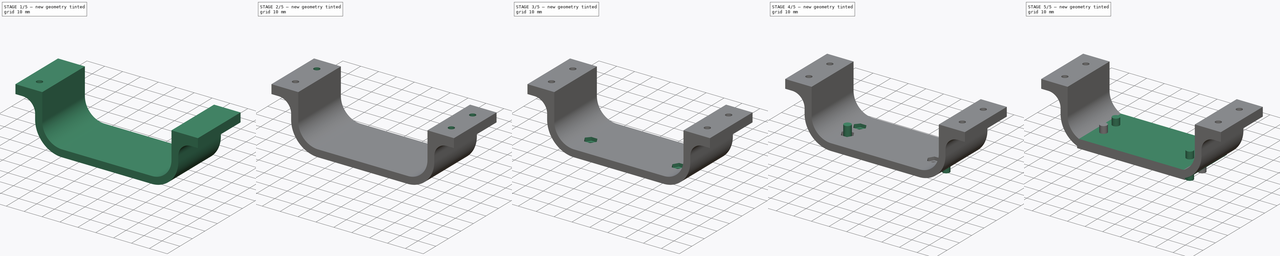
[diagram: build sequence overview — one tinted view per stage of 5, left to right]
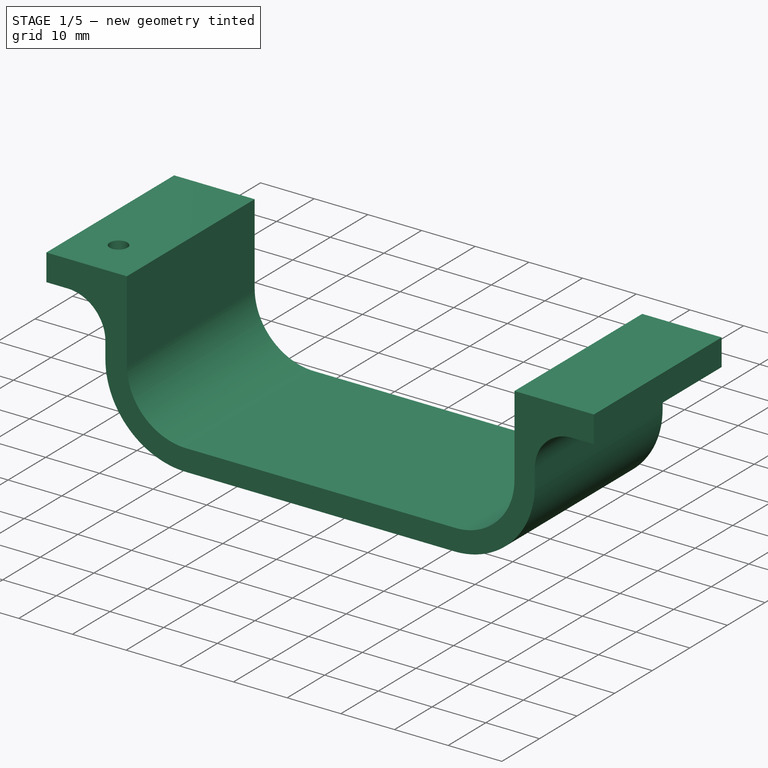
[diagram: stage 1 of 5 — iso view after this stage's code; geometry added in this stage tinted green]
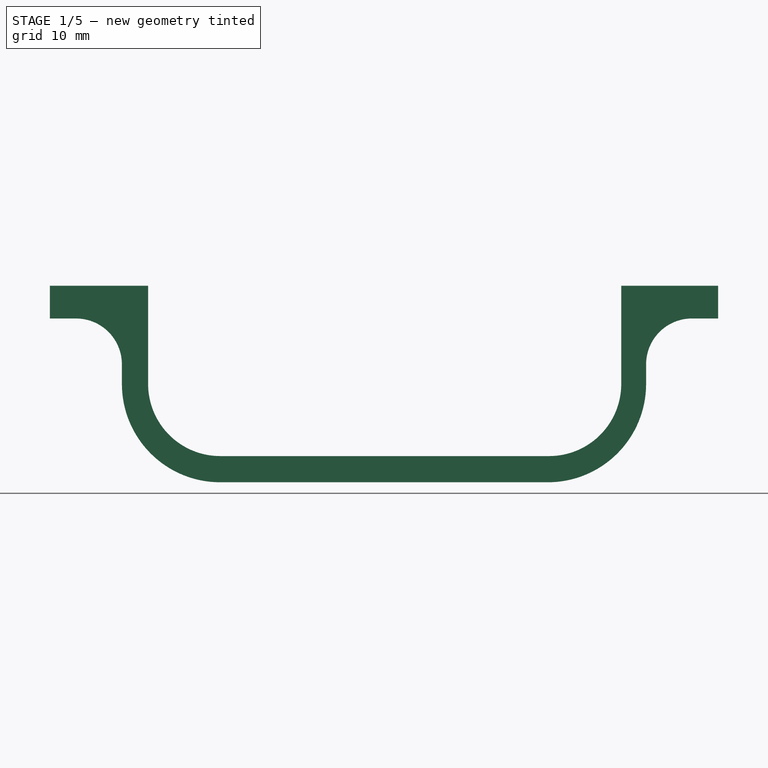
[diagram: stage 1 of 5 — front view after this stage's code; geometry added in this stage tinted green]
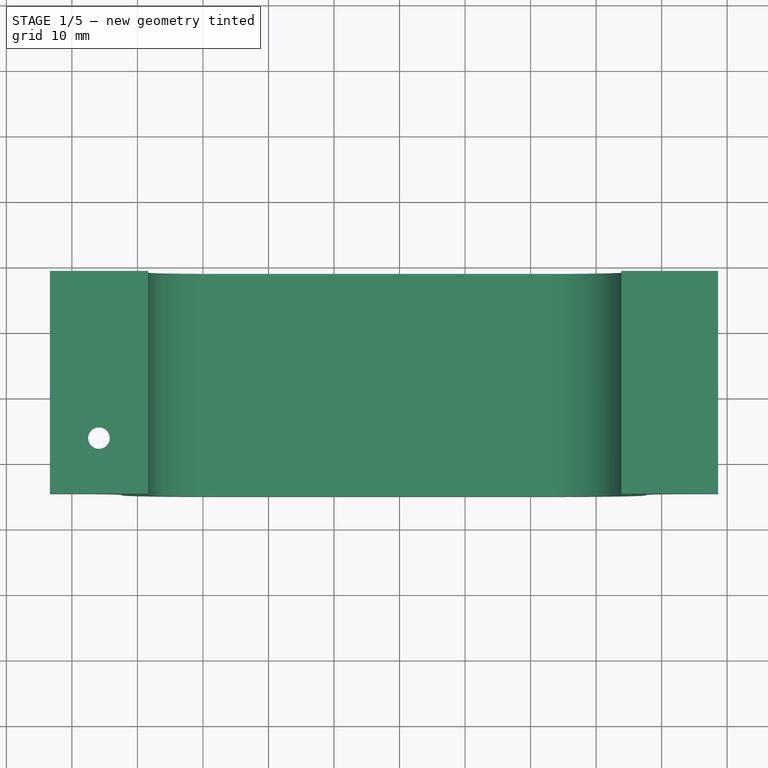
[diagram: stage 1 of 5 — top view after this stage's code; geometry added in this stage tinted green]
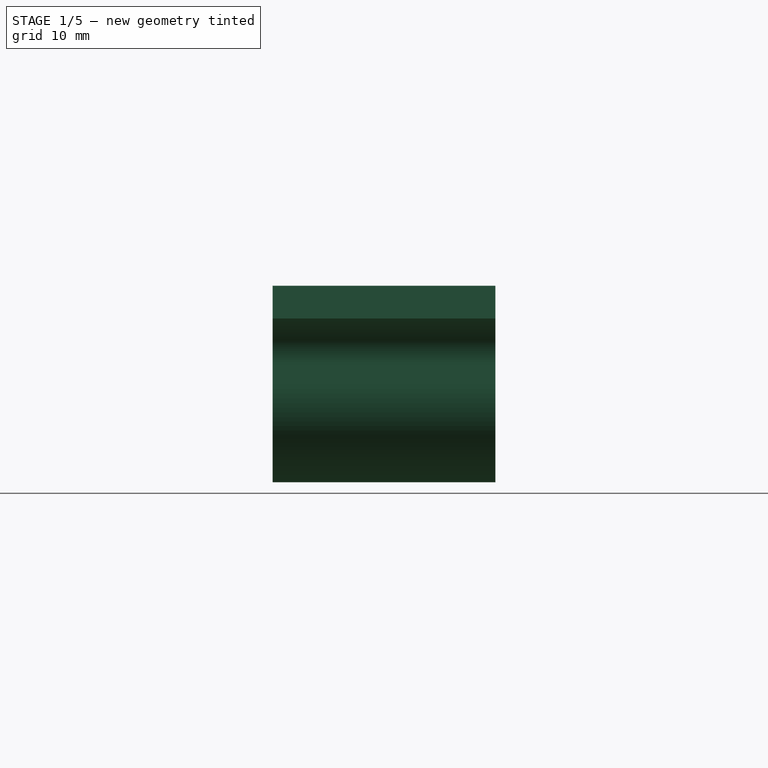
[diagram: stage 1 of 5 — right view after this stage's code; geometry added in this stage tinted green]
FCSTD DOCUMENT  (FreeCAD 0.16R6706 (Git))
Label: pieza8v1
License: CreativeCommons Attribution-ShareAlike
LicenseURL: http://creativecommons.org/licenses/by-sa/4.0/
objects: Part::Feature×9, Part::Cut×8, Part::Cylinder×4, Part::Box×1, Sketcher::SketchObject×1, PartDesign::Pad×1, Part::FeaturePython×1
note: 26 computed .brp shape members not serialized (recipe doc carries the construction recipe); baked Part::Feature solids carry a one-line shape summary decoded from their .brp

FEATURE [Sketcher::SketchObject] Sketch
  Placement = pos=(0,0,0) rot=(1,0,0;1.5708rad)
  sketch-geometry (20):
    g0: LineSegment StartX=0 StartY=0 StartZ=0 EndX=-25 EndY=0 EndZ=0
    g1: LineSegment StartX=-40 StartY=15 StartZ=0 EndX=-40 EndY=18 EndZ=0
    g2: LineSegment StartX=-47 StartY=25 StartZ=0 EndX=-51 EndY=25 EndZ=0
    g3: LineSegment StartX=-51 StartY=25 StartZ=0 EndX=-51 EndY=30 EndZ=0
    g4: LineSegment StartX=-51 StartY=30 StartZ=0 EndX=-36 EndY=30 EndZ=0
    g5: LineSegment StartX=-36 StartY=30 StartZ=0 EndX=-36 EndY=15 EndZ=0
    g6: LineSegment StartX=-25 StartY=4 StartZ=0 EndX=0 EndY=4 EndZ=0
    g7: ArcOfCircle CenterX=-25 CenterY=15 CenterZ=0 NormalX=0 NormalY=0 NormalZ=1 Radius=11 StartAngle=3.14159 EndAngle=4.71239
    g8: ArcOfCircle CenterX=-25 CenterY=15 CenterZ=0 NormalX=0 NormalY=0 NormalZ=1 Radius=15 StartAngle=3.14159 EndAngle=4.71239
    g9: ArcOfCircle CenterX=-47 CenterY=18 CenterZ=0 NormalX=0 NormalY=0 NormalZ=1 Radius=7 StartAngle=0 EndAngle=1.5708
    g10: LineSegment StartX=51 StartY=30 StartZ=0 EndX=36.2068 EndY=30 EndZ=0
    g11: LineSegment StartX=51 StartY=25 StartZ=0 EndX=51 EndY=30 EndZ=0
    g12: LineSegment StartX=36.2068 StartY=30 StartZ=0 EndX=36.2068 EndY=15 EndZ=0
    g13: LineSegment StartX=47 StartY=25 StartZ=0 EndX=51 EndY=25 EndZ=0
    g14: ArcOfCircle CenterX=47 CenterY=18 CenterZ=0 NormalX=0 NormalY=0 NormalZ=1 Radius=7 StartAngle=1.5708 EndAngle=3.14159
    g15: LineSegment StartX=40 StartY=15 StartZ=0 EndX=40 EndY=18 EndZ=0
    g16: ArcOfCircle CenterX=25 CenterY=15 CenterZ=0 NormalX=0 NormalY=0 NormalZ=1 Radius=15 StartAngle=4.71239 EndAngle=6.28319
    g17: ArcOfCircle CenterX=25.2068 CenterY=15 CenterZ=0 NormalX=0 NormalY=0 NormalZ=1 Radius=11 StartAngle=4.71239 EndAngle=6.28319
    g18: LineSegment StartX=25.2068 StartY=4 StartZ=0 EndX=0 EndY=4 EndZ=0
    g19: LineSegment StartX=0 StartY=0 StartZ=0 EndX=25 EndY=0 EndZ=0
  constraints (47):
    c: Coincident(g-1,g0)
    c: Vertical(g1)
    c: Horizontal(g2)
    c: Coincident(g2,g3)
    c: Coincident(g3,g4)
    c: Horizontal(g4)
    c: Coincident(g4,g5)
    c: Vertical(g5)
    c: Horizontal(g6)
    c: DistanceY(g0,g6) = 4
    c: Vertical(g3)
    c: DistanceY(g3,g3) = 5
    c: Horizontal(g0)
    c: Tangent(g5,g7) = -1.5708
    c: Tangent(g6,g7) = -1.5708
    c: Tangent(g1,g8) = 1.5708
    c: Tangent(g0,g8) = 1.5708
    c: Radius(g8) = 15
    c: Radius(g7) = 11
    c: DistanceX(g7,g-1) = 25
    c: Tangent(g2,g9) = -1.5708
    c: Tangent(g1,g9) = -1.5708
    c: Radius(g9) = 7
    c: DistanceY(g5,g5) = 15
    c: DistanceX(g4,g4) = 15
    c: DistanceX(g1,g5) = 4
    c: Vertical(g15)
    c: Horizontal(g13)
    c: Coincident(g13,g11)
    c: Coincident(g11,g10)
    c: Horizontal(g10)
    c: Coincident(g10,g12)
    c: Vertical(g12)
    c: Horizontal(g18)
    c: Vertical(g11)
    c: Horizontal(g19)
    c: Tangent(g12,g17) = 1.5708
    c: Tangent(g18,g17) = 1.5708
    c: Tangent(g15,g16) = -1.5708
    c: Tangent(g19,g16) = -1.5708
    c: Radius(g16) = 15
    c: Radius(g17) = 11
    c: Tangent(g13,g14) = 1.5708
    c: Tangent(g15,g14) = 1.5708
    c: Radius(g14) = 7
    c: Coincident(g18,g6)
    c: Coincident(g19,g-1)
FEATURE [PartDesign::Pad] Pad
  Length = 34
  Length2 = 100
  Placement = pos=(0,0,0) rot=(1,0,0;1.5708rad)
  Sketch = -> Sketch
  Type = 0
FEATURE [Part::FeaturePython] Clone  label="Clone of Pad"  # Draft clone (typed FeaturePython)
  Objects = -> [Pad]
  Placement = pos=(27.63,29,0) rot=(1,0,0;1.5708rad)
  Scale = (1,1,1)
FEATURE [Part::Feature] Fusion001  label="TuercaTalAncho001"
  Placement = pos=(-15.87,3.5,28) rot=(1,0,0;1.5708rad)
  shape: bbox 6.697 x 5.8 x 23 mm, 10 faces (baked)
FEATURE [Part::Feature] Fusion002  label="TuercaTalAncho002"
  Placement = pos=(-15.87,20.5,28) rot=(1,0,0;1.5708rad)
  shape: bbox 6.697 x 5.8 x 23 mm, 10 faces (baked)
FEATURE [Part::Feature] Fusion003  label="TuercaTalAncho003"
  Placement = pos=(71.2334,3.5,28) rot=(1,0,0;1.5708rad)
  shape: bbox 6.697 x 5.8 x 23 mm, 10 faces (baked)
FEATURE [Part::Feature] Fusion004  label="TuercaTalAncho004"
  Placement = pos=(71.2334,20.5,28) rot=(1,0,0;1.5708rad)
  shape: bbox 6.697 x 5.8 x 23 mm, 10 faces (baked)
FEATURE [Part::Feature] Clone005001006  label=" taladroTuercaM010"
  Placement = pos=(3.15,-2.31,4.35) rot=(1,0,0;3.14159rad)
  shape: bbox 6.7 x 5.802 x 32.25 mm, 10 faces (baked)
FEATURE [Part::Feature] Clone005001007  label=" taladroTuercaM011"
  Placement = pos=(52.11,-2.31,4.35) rot=(1,0,0;3.14159rad)
  shape: bbox 6.7 x 5.802 x 32.25 mm, 10 faces (baked)
FEATURE [Part::Feature] Clone005001008  label=" taladroTuercaM012"
  Placement = pos=(52.11,7.71,4.35) rot=(1,0,0;3.14159rad)
  shape: bbox 6.7 x 5.802 x 32.25 mm, 10 faces (baked)
FEATURE [Part::Feature] Clone005001009  label=" taladroTuercaM013"
  Placement = pos=(3.15,7.71,4.35) rot=(1,0,0;3.14159rad)
  shape: bbox 6.7 x 5.802 x 32.25 mm, 10 faces (baked)
FEATURE [Part::Cut] Cut
  Base = -> Clone
  Tool = -> Fusion001
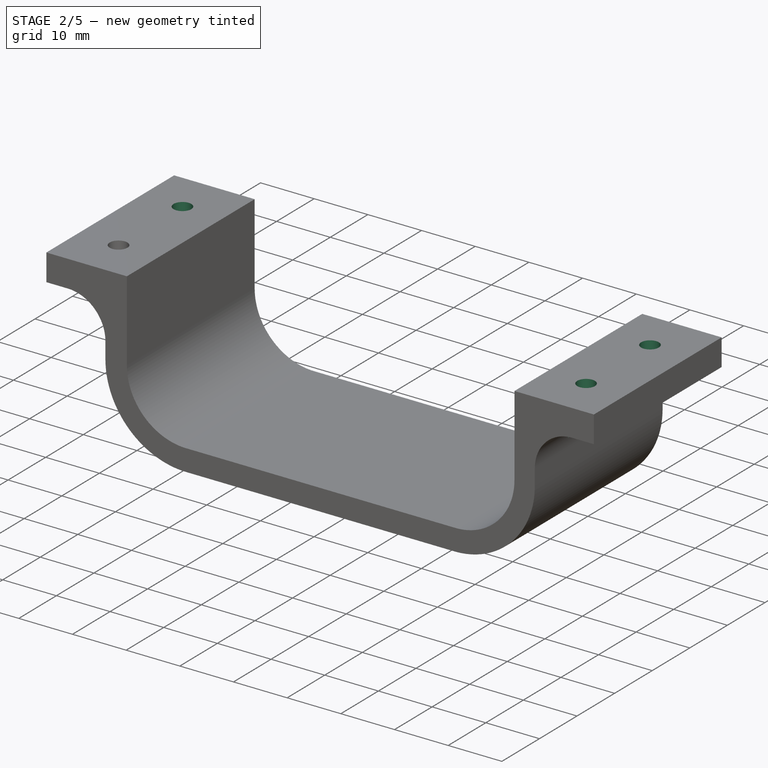
[diagram: stage 2 of 5 — iso view after this stage's code; geometry added in this stage tinted green]
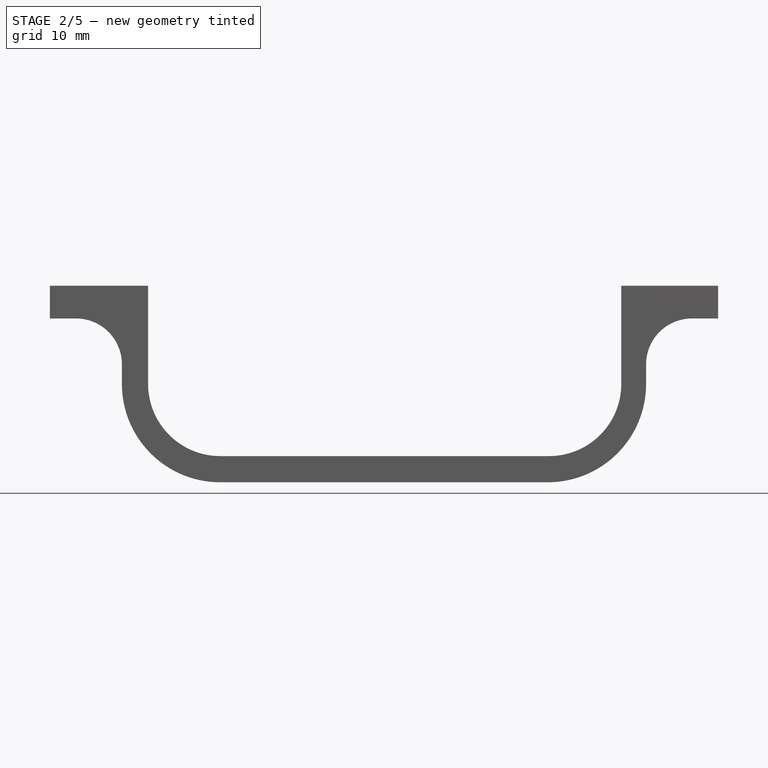
[diagram: stage 2 of 5 — front view after this stage's code; geometry added in this stage tinted green]
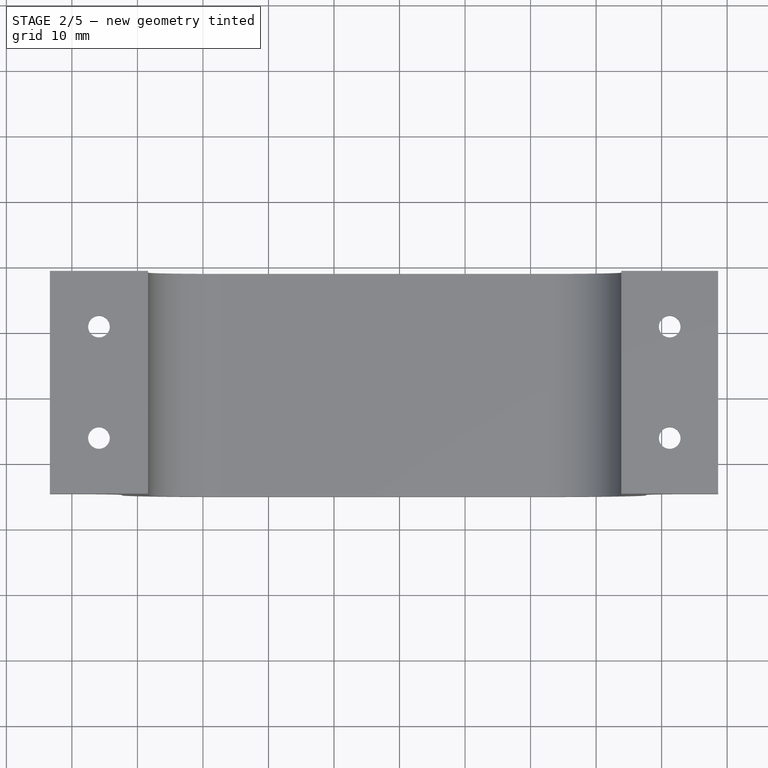
[diagram: stage 2 of 5 — top view after this stage's code; geometry added in this stage tinted green]
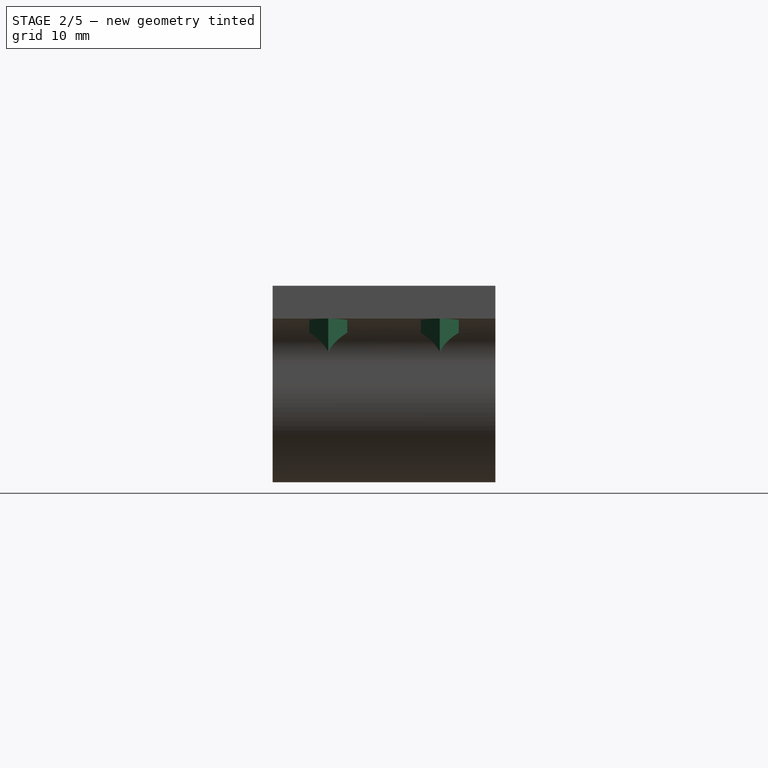
[diagram: stage 2 of 5 — right view after this stage's code; geometry added in this stage tinted green]
FEATURE [Part::Cut] Cut001
  Base = -> Cut
  Tool = -> Fusion002
FEATURE [Part::Cut] Cut002
  Base = -> Cut001
  Tool = -> Fusion003
FEATURE [Part::Cut] Cut003
  Base = -> Cut002
  Tool = -> Fusion004
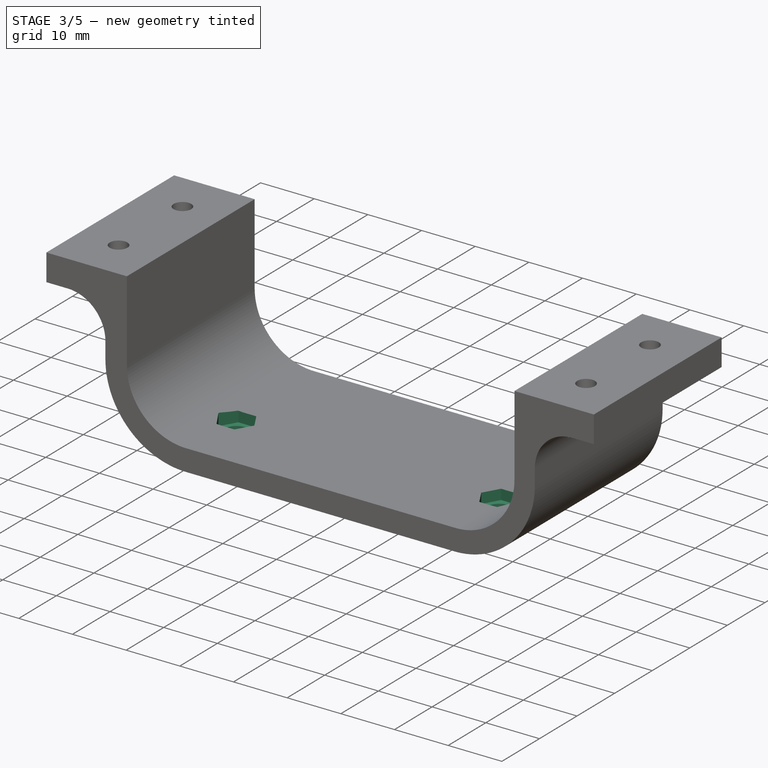
[diagram: stage 3 of 5 — iso view after this stage's code; geometry added in this stage tinted green]
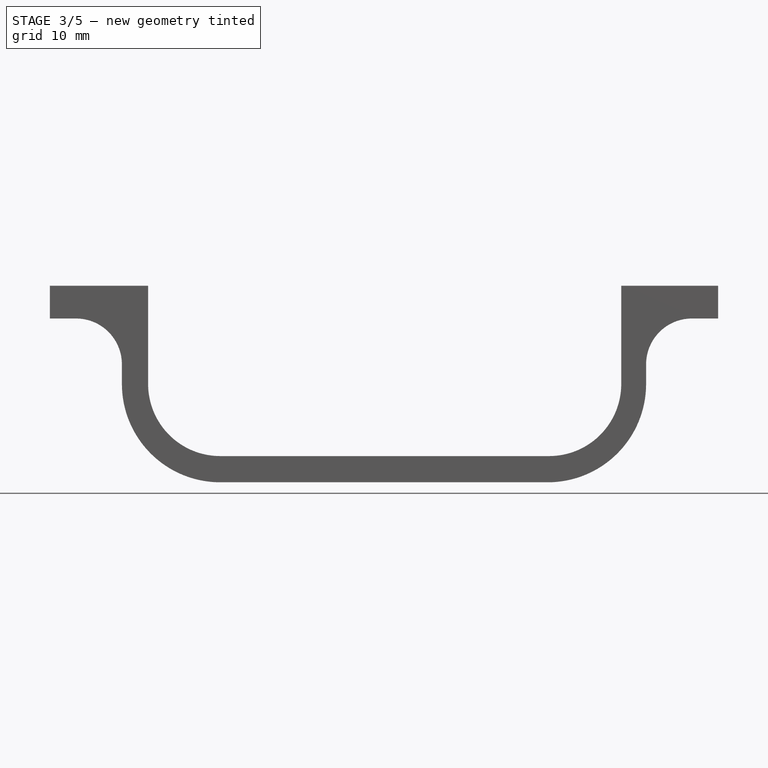
[diagram: stage 3 of 5 — front view after this stage's code; geometry added in this stage tinted green]
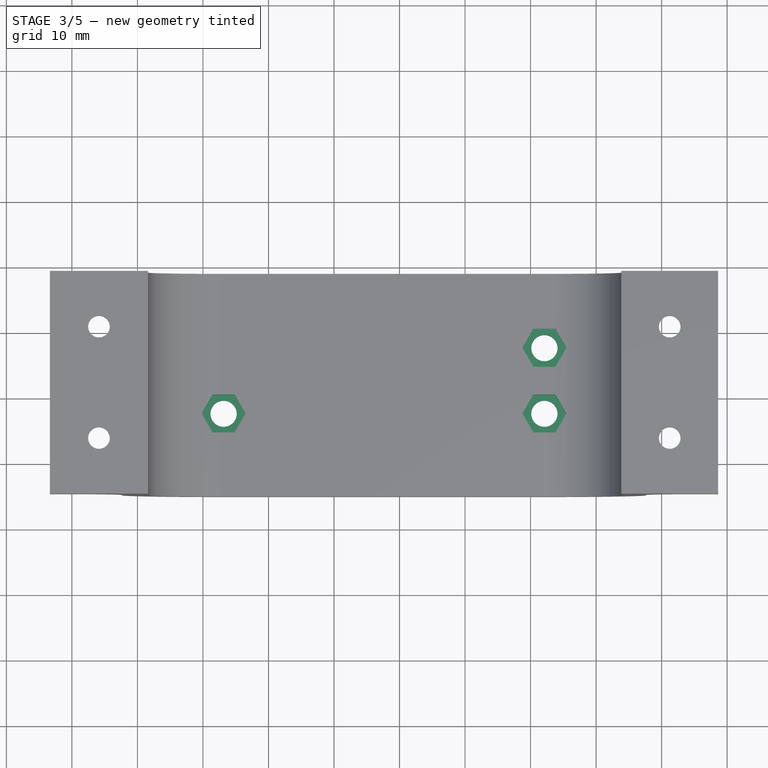
[diagram: stage 3 of 5 — top view after this stage's code; geometry added in this stage tinted green]
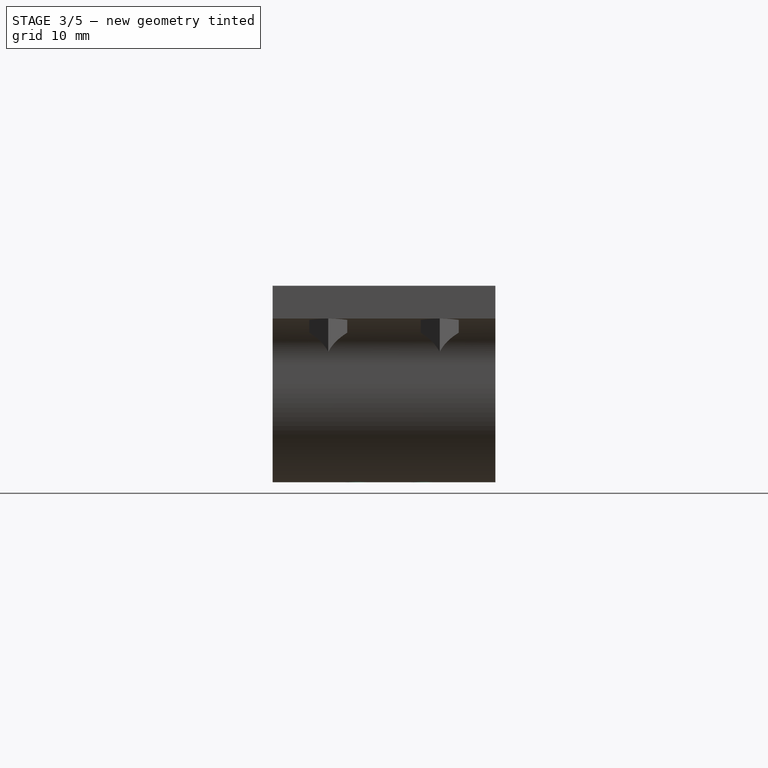
[diagram: stage 3 of 5 — right view after this stage's code; geometry added in this stage tinted green]
FEATURE [Part::Cut] Cut004
  Base = -> Cut003
  Tool = -> Clone005001006
FEATURE [Part::Cut] Cut005
  Base = -> Cut004
  Tool = -> Clone005001007
FEATURE [Part::Cut] Cut006
  Base = -> Cut005
  Tool = -> Clone005001008
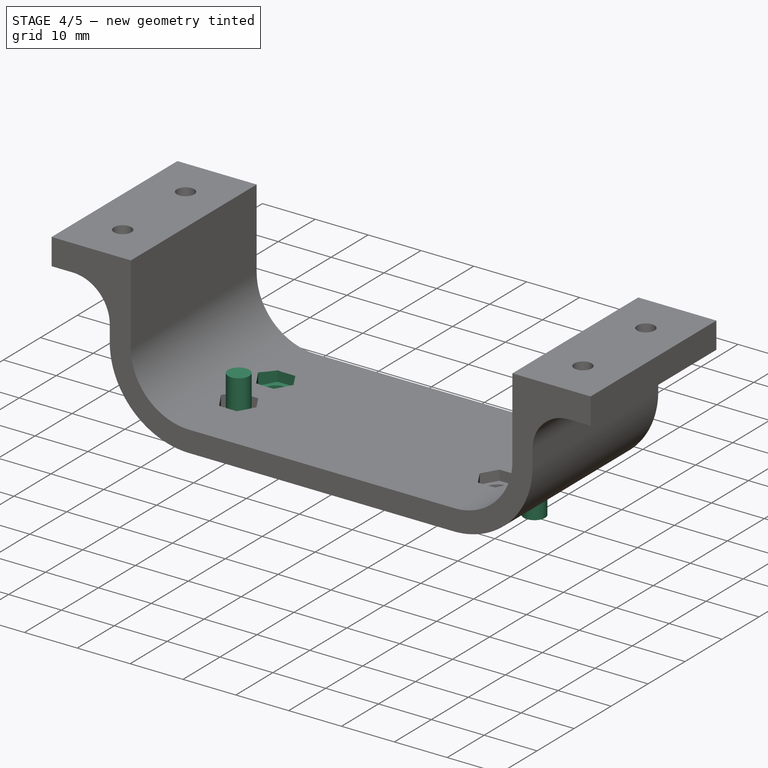
[diagram: stage 4 of 5 — iso view after this stage's code; geometry added in this stage tinted green]
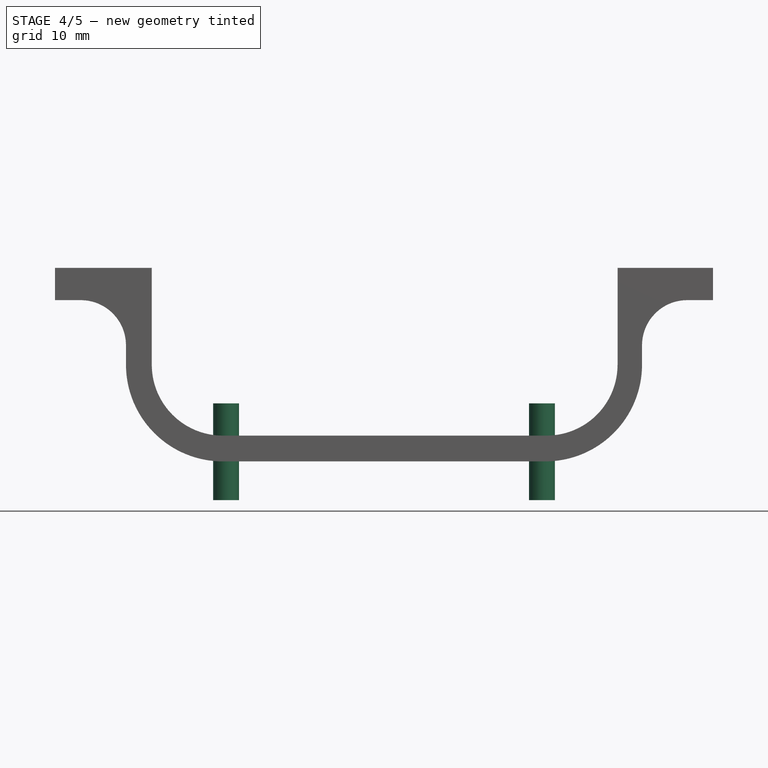
[diagram: stage 4 of 5 — front view after this stage's code; geometry added in this stage tinted green]
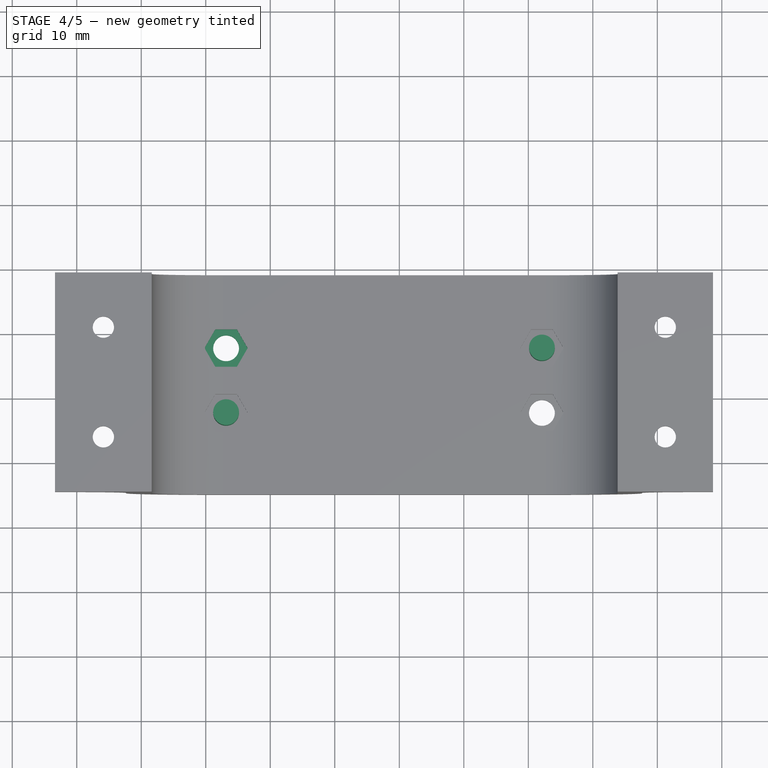
[diagram: stage 4 of 5 — top view after this stage's code; geometry added in this stage tinted green]
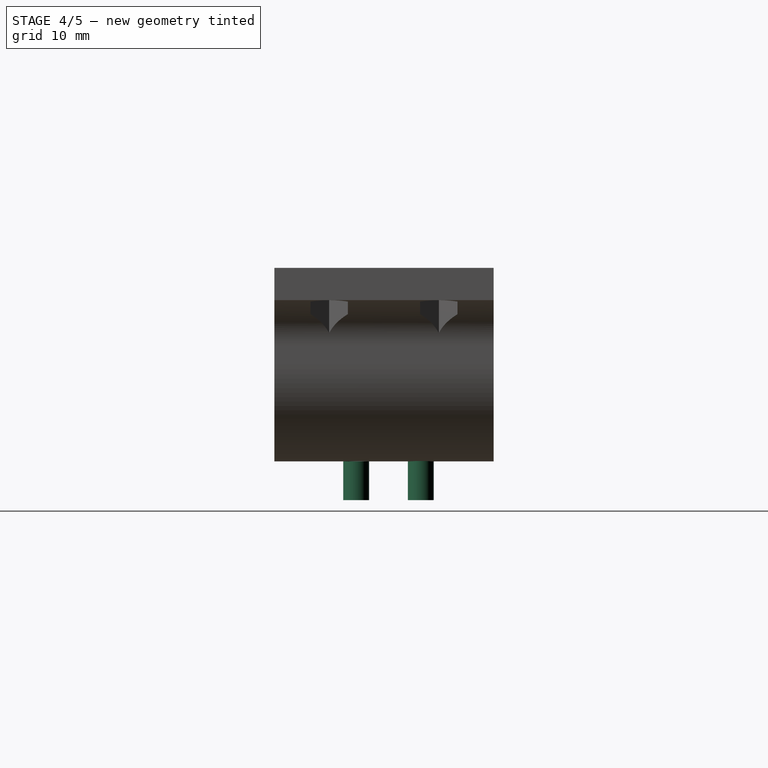
[diagram: stage 4 of 5 — right view after this stage's code; geometry added in this stage tinted green]
FEATURE [Part::Cylinder] Cylinder006  label="Cilindro006"
  Angle = 360
  Height = 15
  Placement = pos=(3.15,7.69,-6) rot=(0,0,1;0rad)
  Radius = 2
FEATURE [Part::Cylinder] Cylinder007  label="Cilindro007"
  Angle = 360
  Height = 15
  Placement = pos=(52.11,17.71,-6) rot=(0,0,1;0rad)
  Radius = 2
FEATURE [Part::Cut] Cut007
  Base = -> Cut006
  Tool = -> Clone005001009
FEATURE [Part::Feature] Cut007001  label="Cut008"
  Placement = pos=(0,0,0) rot=(1,0,0;1.5708rad)
  shape: bbox 102 x 30 x 34 mm, 92 faces (baked)
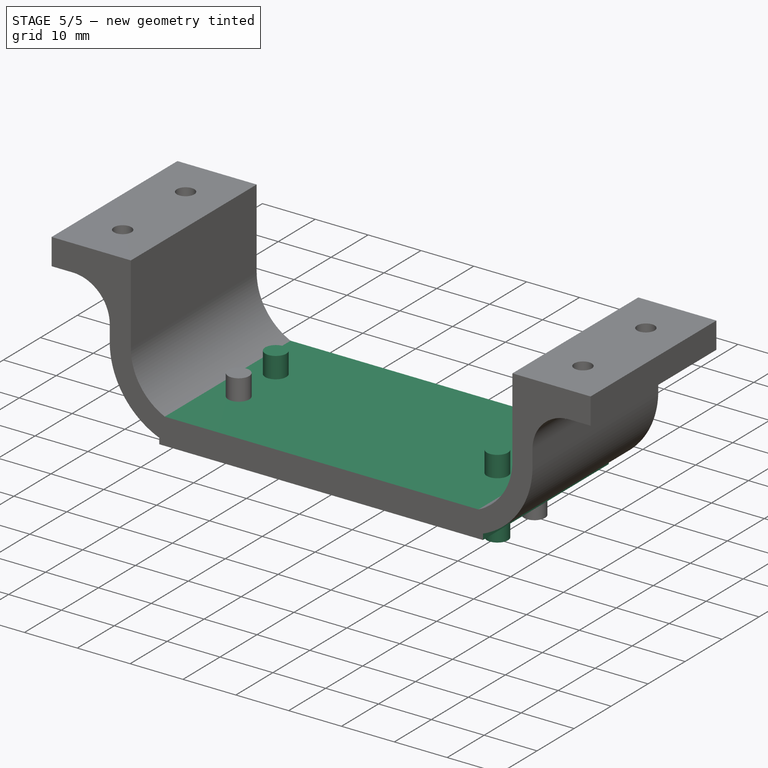
[diagram: stage 5 of 5 — iso view after this stage's code; geometry added in this stage tinted green]
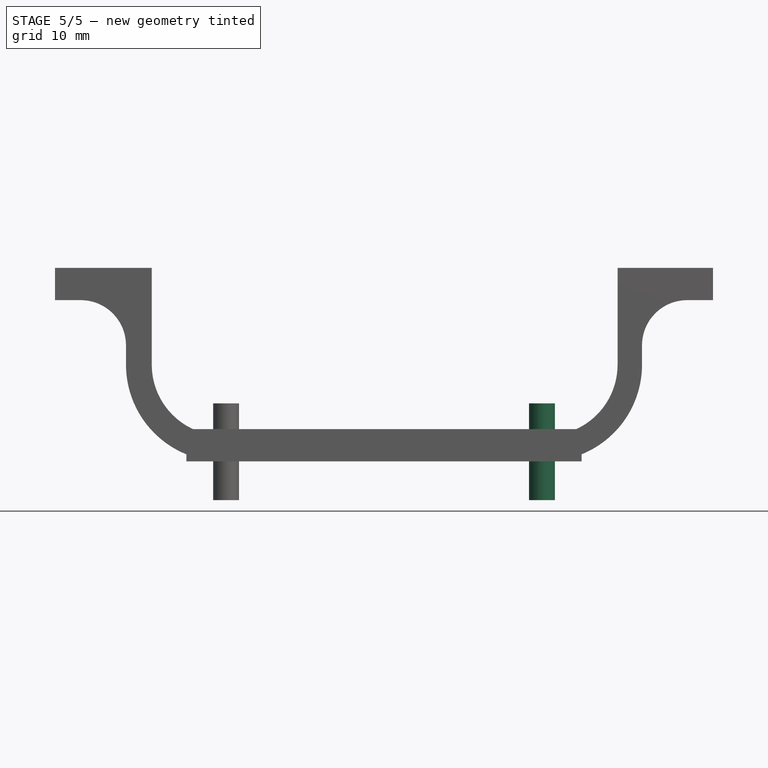
[diagram: stage 5 of 5 — front view after this stage's code; geometry added in this stage tinted green]
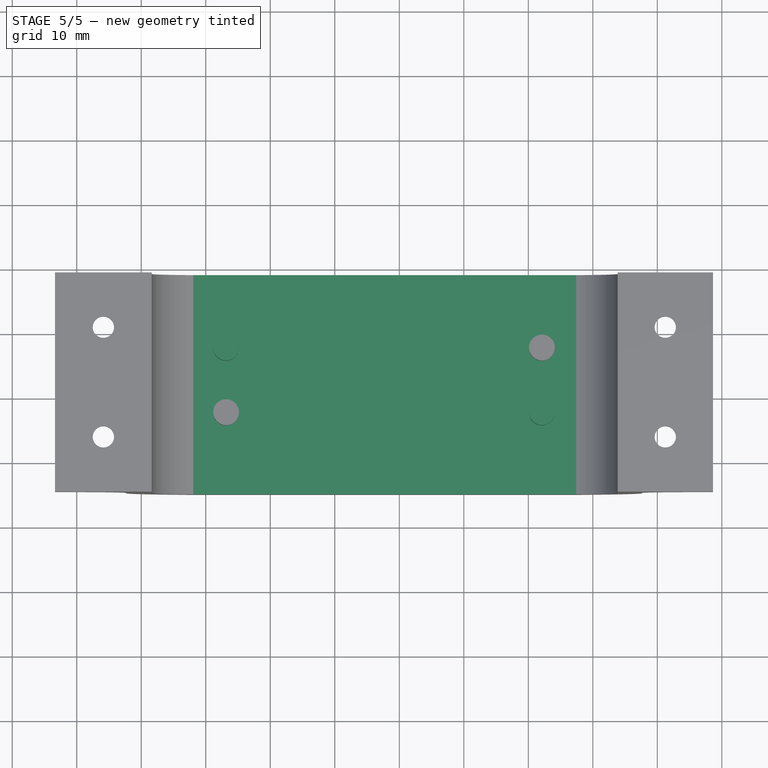
[diagram: stage 5 of 5 — top view after this stage's code; geometry added in this stage tinted green]
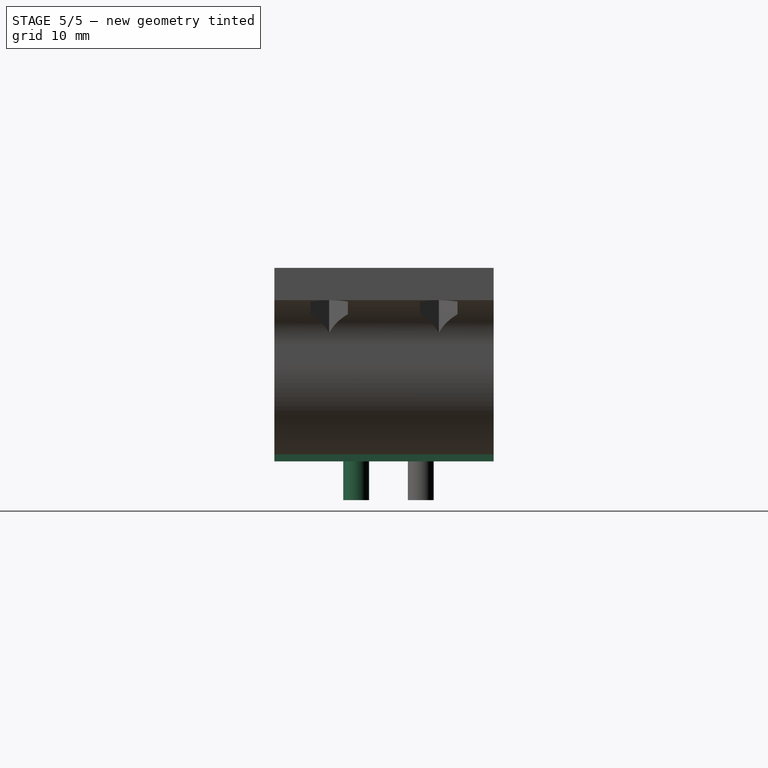
[diagram: stage 5 of 5 — right view after this stage's code; geometry added in this stage tinted green]
FEATURE [Part::Box] Box  label="Cubo"
  Height = 5
  Length = 61.26
  Placement = pos=(-3,-5,0) rot=(0,0,1;0rad)
  Width = 34
FEATURE [Part::Cylinder] Cylinder004  label="Cilindro004"
  Angle = 360
  Height = 15
  Placement = pos=(3.15,17.71,-6) rot=(0,0,1;0rad)
  Radius = 2
FEATURE [Part::Cylinder] Cylinder005  label="Cilindro005"
  Angle = 360
  Height = 15
  Placement = pos=(52.11,7.69,-6) rot=(0,0,1;0rad)
  Radius = 2
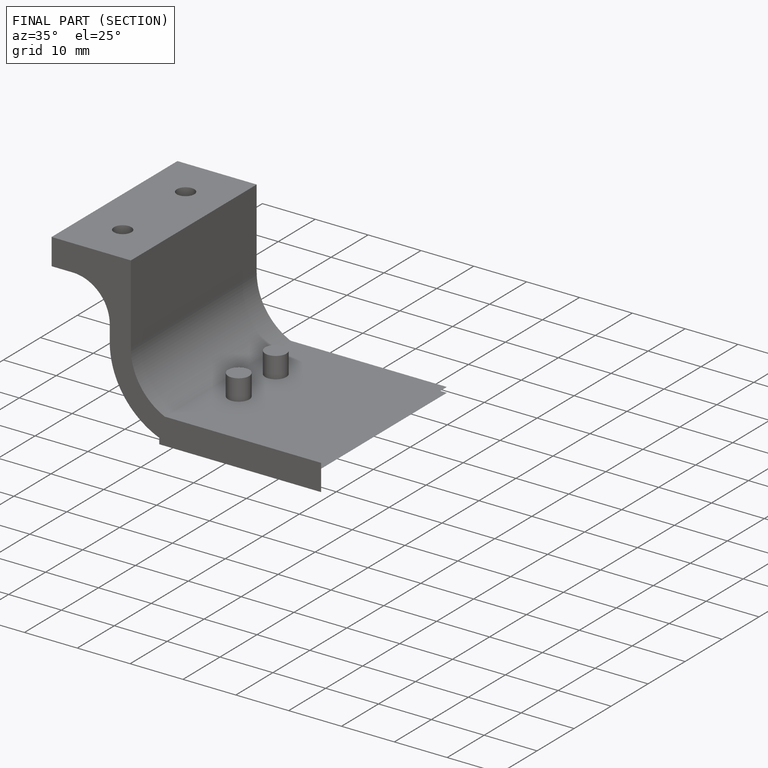
[diagram: finished part — half-section view (interior)]
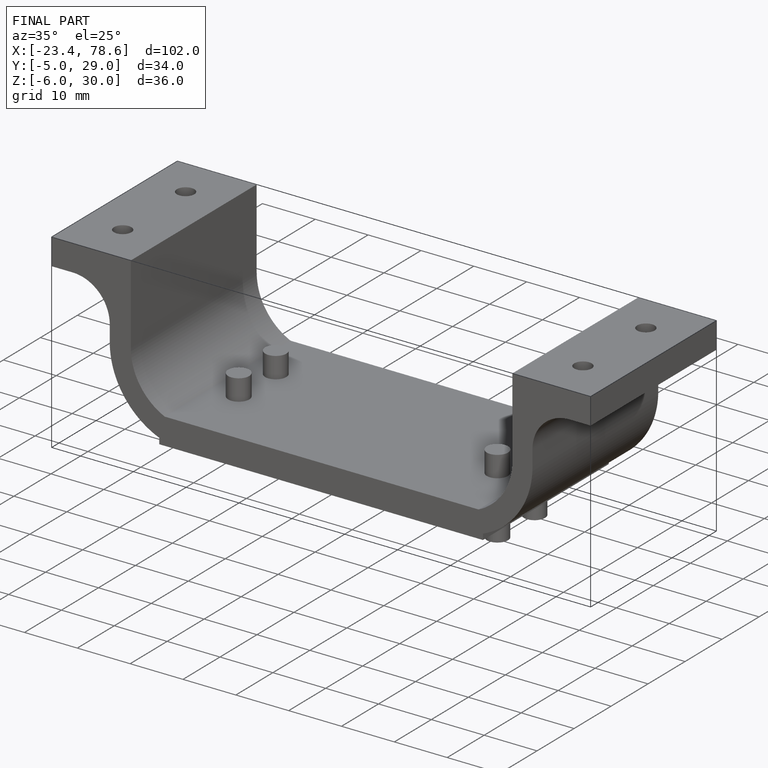
[diagram: finished part — iso view with bounding-box wireframe]
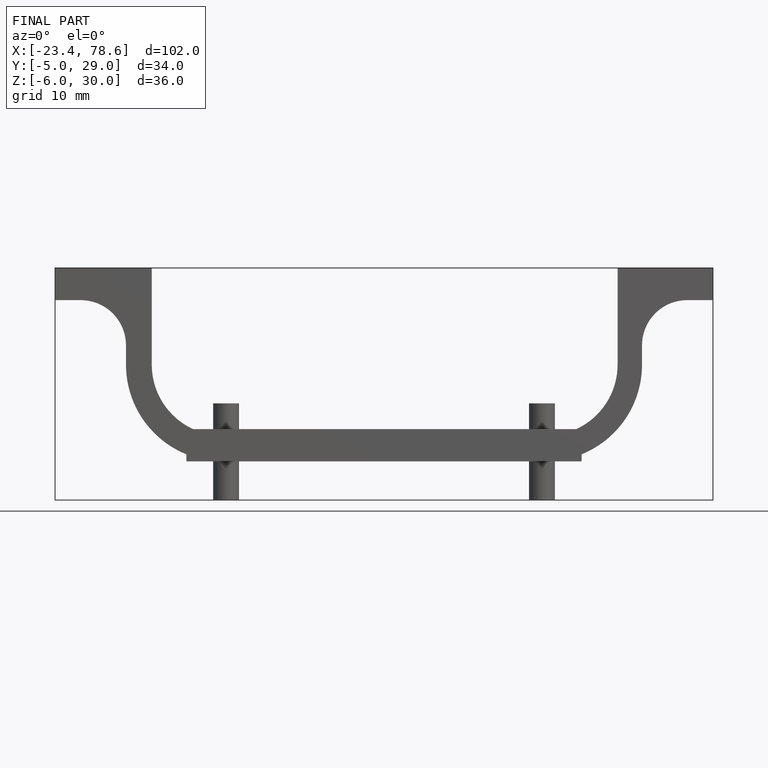
[diagram: finished part — front view with bounding-box wireframe]
